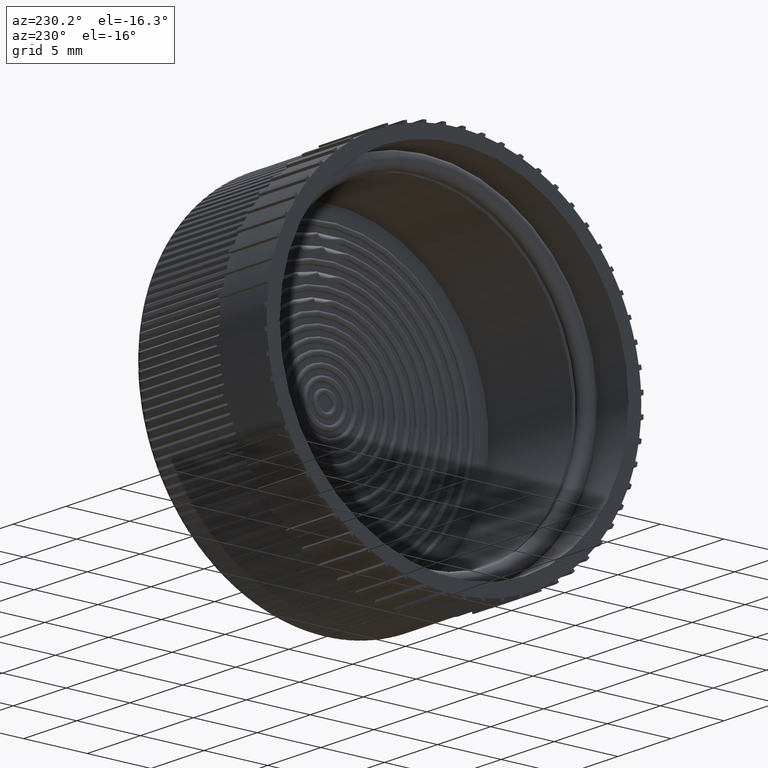
[diagram: clean part render]
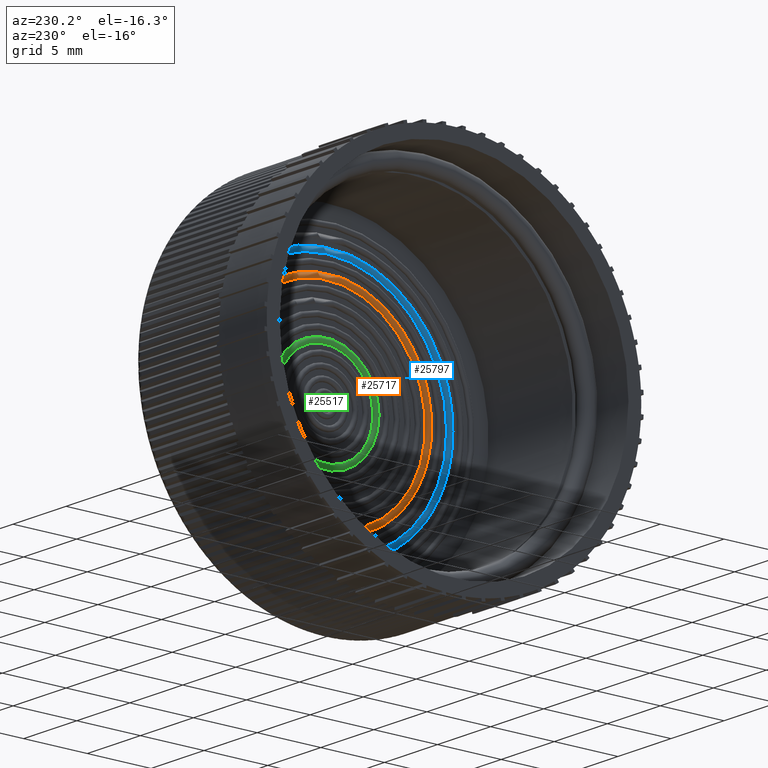
[diagram: same view with three faces highlighted in distinct colors, each labeled with its STEP entity id]
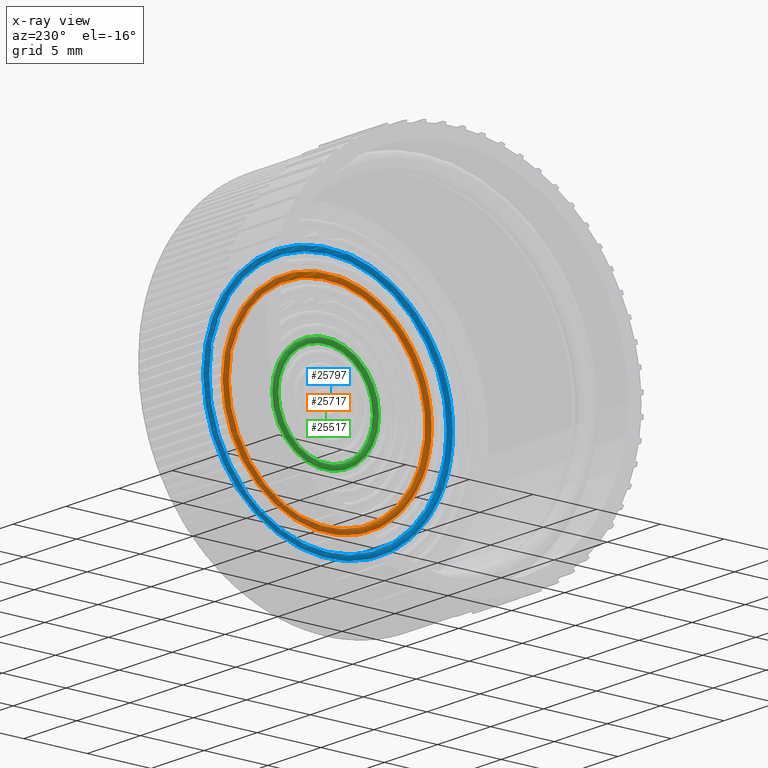
[diagram: x-ray of the same camera — body ghosted, the three highlighted faces saturated]
A machine part, auxiliary view with three faces highlighted in distinct colors.
The next image is the same camera in x-ray (body ghosted, the three faces saturated) — at least one of them is partly hidden behind the body in this view.
Their STEP definitions:

[orange] entity #25717 — the highlighted toroidal blend (fillet) surface has major radius 7.9691 mm and minor (blend) radius 0.2 mm.
#25683=CARTESIAN_POINT('',(3.795688870961755,15.828240064115906,0.0));
#25684=VERTEX_POINT('',#25683);
#25685=CARTESIAN_POINT('',(3.795688870961755,8.056008623628809,0.0));
#25686=DIRECTION('',(1.0,0.0,0.0));
#25687=DIRECTION('',(0.0,1.0,0.0));
#25688=AXIS2_PLACEMENT_3D('',#25685,#25686,#25687);
#25689=CIRCLE('',#25688,7.772231440487096);
#25690=EDGE_CURVE('',#25684,#25684,#25689,.T.);
#25698=CARTESIAN_POINT('',(3.760296750117250,8.056008623628809,0.0));
#25699=DIRECTION('',(1.0,0.0,0.0));
#25700=DIRECTION('',(0.0,0.0,-1.0));
#25701=AXIS2_PLACEMENT_3D('',#25698,#25699,#25700);
#25702=TOROIDAL_SURFACE('',#25701,7.969075027586426,0.200000000000000);
#25703=CARTESIAN_POINT('',(3.777183088588482,16.224369505136281,0.0));
#25704=VERTEX_POINT('',#25703);
#25705=CARTESIAN_POINT('',(3.777183088588483,8.056008623628809,0.0));
#25706=DIRECTION('',(1.0,0.0,0.0));
#25707=DIRECTION('',(0.0,1.0,0.0));
#25708=AXIS2_PLACEMENT_3D('',#25705,#25706,#25707);
#25709=CIRCLE('',#25708,8.168360881507471);
#25710=EDGE_CURVE('',#25704,#25704,#25709,.T.);
#25711=ORIENTED_EDGE('',*,*,#25710,.F.);
#25712=EDGE_LOOP('',(#25711));
#25713=FACE_OUTER_BOUND('',#25712,.T.);
#25714=ORIENTED_EDGE('',*,*,#25690,.T.);
#25715=EDGE_LOOP('',(#25714));
#25716=FACE_BOUND('',#25715,.T.);
#25717=ADVANCED_FACE('',(#25713,#25716),#25702,.T.);

[blue] entity #25797 — the highlighted toroidal blend (fillet) surface has major radius 9.5718 mm and minor (blend) radius 0.2 mm.
#25763=CARTESIAN_POINT('',(3.715112512223385,17.431339173114644,0.0));
#25764=VERTEX_POINT('',#25763);
#25765=CARTESIAN_POINT('',(3.715112512223384,8.056008623628809,0.0));
#25766=DIRECTION('',(1.0,0.0,0.0));
#25767=DIRECTION('',(0.0,1.0,0.0));
#25768=AXIS2_PLACEMENT_3D('',#25765,#25766,#25767);
#25769=CIRCLE('',#25768,9.375330549485835);
#25770=EDGE_CURVE('',#25764,#25764,#25769,.T.);
#25778=CARTESIAN_POINT('',(3.677872059921525,8.056008623628809,0.0));
#25779=DIRECTION('',(1.0,0.0,0.0));
#25780=DIRECTION('',(0.0,0.0,-1.0));
#25781=AXIS2_PLACEMENT_3D('',#25778,#25779,#25780);
#25782=TOROIDAL_SURFACE('',#25781,9.571832836272424,0.200000000000000);
#25783=CARTESIAN_POINT('',(3.692884806402031,17.827277207557263,0.0));
#25784=VERTEX_POINT('',#25783);
#25785=CARTESIAN_POINT('',(3.692884806402030,8.056008623628809,0.0));
#25786=DIRECTION('',(1.0,0.0,0.0));
#25787=DIRECTION('',(0.0,1.0,0.0));
#25788=AXIS2_PLACEMENT_3D('',#25785,#25786,#25787);
#25789=CIRCLE('',#25788,9.771268583928451);
#25790=EDGE_CURVE('',#25784,#25784,#25789,.T.);
#25791=ORIENTED_EDGE('',*,*,#25790,.F.);
#25792=EDGE_LOOP('',(#25791));
#25793=FACE_OUTER_BOUND('',#25792,.T.);
#25794=ORIENTED_EDGE('',*,*,#25770,.T.);
#25795=EDGE_LOOP('',(#25794));
#25796=FACE_BOUND('',#25795,.T.);
#25797=ADVANCED_FACE('',(#25793,#25796),#25782,.T.);

[green] entity #25517 — the highlighted toroidal blend (fillet) surface has major radius 3.9594 mm and minor (blend) radius 0.2 mm.
#25483=CARTESIAN_POINT('',(3.931189968697852,11.817798954762488,0.0));
#25484=VERTEX_POINT('',#25483);
#25485=CARTESIAN_POINT('',(3.931189968697852,8.056008623628809,0.0));
#25486=DIRECTION('',(1.0,0.0,0.0));
#25487=DIRECTION('',(0.0,1.0,0.0));
#25488=AXIS2_PLACEMENT_3D('',#25485,#25486,#25487);
#25489=CIRCLE('',#25488,3.761790331133679);
#25490=EDGE_CURVE('',#25484,#25484,#25489,.T.);
#25498=CARTESIAN_POINT('',(3.900431994295590,8.056008623628809,0.0));
#25499=DIRECTION('',(1.0,0.0,0.0));
#25500=DIRECTION('',(0.0,0.0,-1.0));
#25501=AXIS2_PLACEMENT_3D('',#25498,#25499,#25500);
#25502=TOROIDAL_SURFACE('',#25501,3.959411046167973,0.200000000000000);
#25503=CARTESIAN_POINT('',(3.921995426182835,12.214253817782595,0.0));
#25504=VERTEX_POINT('',#25503);
#25505=CARTESIAN_POINT('',(3.921995426182834,8.056008623628809,0.0));
#25506=DIRECTION('',(1.0,0.0,0.0));
#25507=DIRECTION('',(0.0,1.0,0.0));
#25508=AXIS2_PLACEMENT_3D('',#25505,#25506,#25507);
#25509=CIRCLE('',#25508,4.158245194153785);
#25510=EDGE_CURVE('',#25504,#25504,#25509,.T.);
#25511=ORIENTED_EDGE('',*,*,#25510,.F.);
#25512=EDGE_LOOP('',(#25511));
#25513=FACE_OUTER_BOUND('',#25512,.T.);
#25514=ORIENTED_EDGE('',*,*,#25490,.T.);
#25515=EDGE_LOOP('',(#25514));
#25516=FACE_BOUND('',#25515,.T.);
#25517=ADVANCED_FACE('',(#25513,#25516),#25502,.T.);